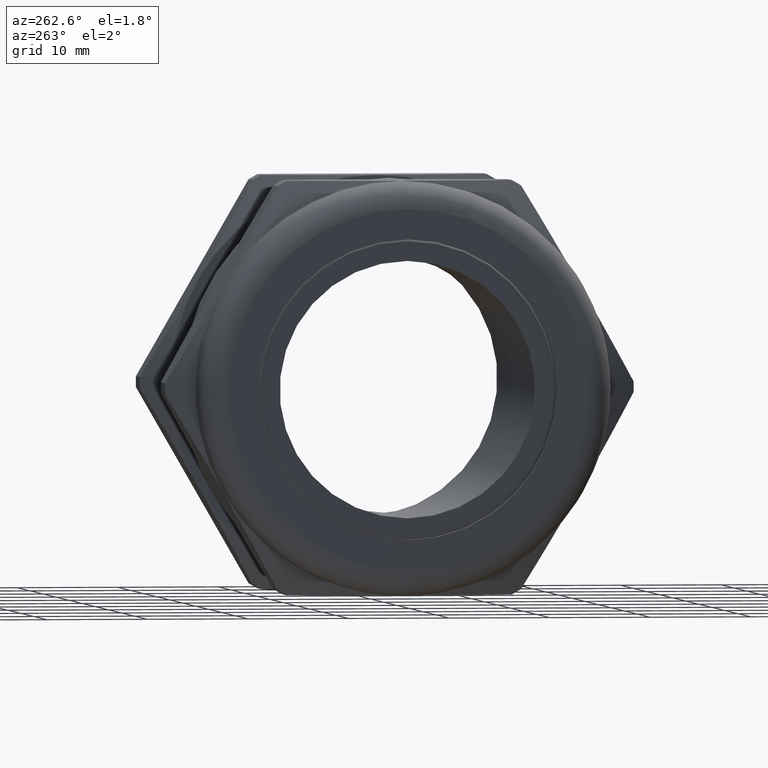
[diagram: clean part render]
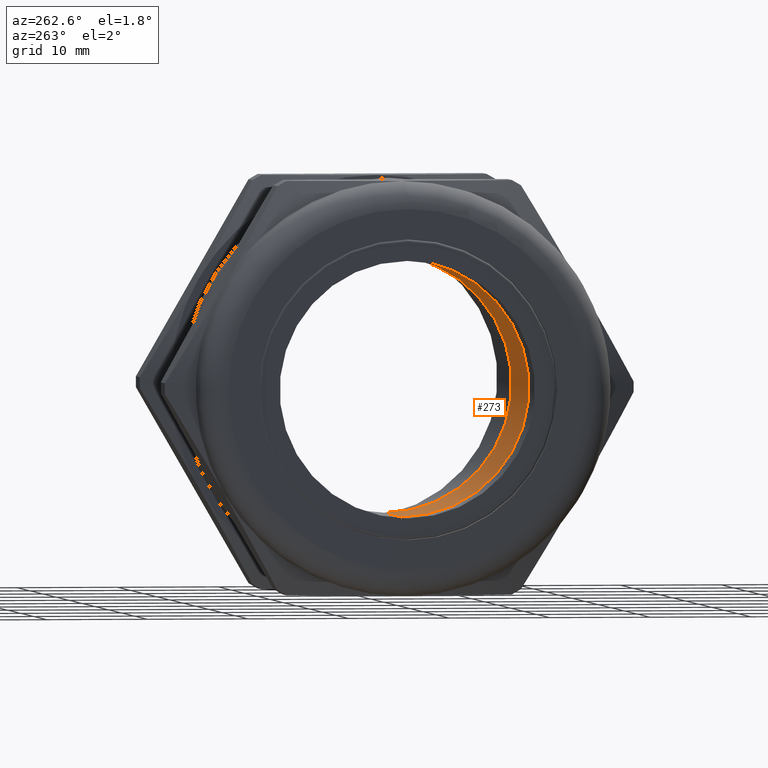
[diagram: same view with one face highlighted and labeled with its STEP entity id]
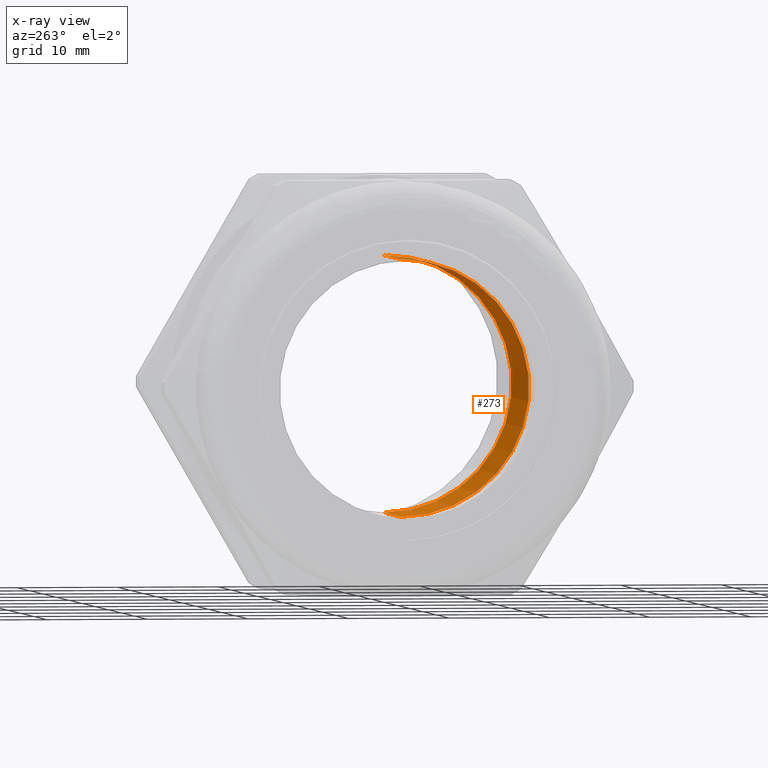
[diagram: x-ray of the same camera — body ghosted, the highlighted face saturated]
A machine part, auxiliary view. The second image highlights one B-rep face of the part: STEP entity #273.
The next image is the same camera in x-ray: the body ghosted, the highlighted face saturated — about 1% of this face is hidden behind the body in this view.
In plain terms, the highlighted cylindrical surface (partial cylindrical patch) has radius 12.7 mm, axis along (-1, 0, 0).
Its self-contained STEP definition (entity closure, byte-faithful):
#262 = ORIENTED_EDGE ( 'NONE', *, *, #318, .F. ) ;
#272 = EDGE_LOOP ( 'NONE', ( #262, #295, #314, #288 ) ) ;
#273 = ADVANCED_FACE ( 'NONE', ( #1937 ), #1936, .F. ) ;
#286 = VERTEX_POINT ( 'NONE', #1927 ) ;
#288 = ORIENTED_EDGE ( 'NONE', *, *, #311, .F. ) ;
#293 = VERTEX_POINT ( 'NONE', #1972 ) ;
#294 = VERTEX_POINT ( 'NONE', #1971 ) ;
#295 = ORIENTED_EDGE ( 'NONE', *, *, #315, .T. ) ;
#311 = EDGE_CURVE ( 'NONE', #286, #294, #1998, .T. ) ;
#312 = VERTEX_POINT ( 'NONE', #1991 ) ;
#313 = EDGE_CURVE ( 'NONE', #293, #294, #1990, .T. ) ;
#314 = ORIENTED_EDGE ( 'NONE', *, *, #313, .T. ) ;
#315 = EDGE_CURVE ( 'NONE', #312, #293, #1985, .T. ) ;
#318 = EDGE_CURVE ( 'NONE', #312, #286, #1981, .T. ) ;
#1927 = CARTESIAN_POINT ( 'NONE',  ( 0.0000000000000000000, 6.355890190153334100E-017, 0.5000000000000000000 ) ) ;
#1932 = DIRECTION ( 'NONE',  ( 0.0000000000000000000, 0.0000000000000000000, 1.000000000000000000 ) ) ;
#1933 = DIRECTION ( 'NONE',  ( -1.000000000000000000, 0.0000000000000000000, 0.0000000000000000000 ) ) ;
#1934 = CARTESIAN_POINT ( 'NONE',  ( -2.719493435091831800, 0.0000000000000000000, 0.0000000000000000000 ) ) ;
#1935 = AXIS2_PLACEMENT_3D ( 'NONE', #1934, #1933, #1932 ) ;
#1936 = CYLINDRICAL_SURFACE ( 'NONE', #1935, 0.5000000000000000000 ) ;
#1937 = FACE_OUTER_BOUND ( 'NONE', #272, .T. ) ;
#1971 = CARTESIAN_POINT ( 'NONE',  ( -0.5235000000000000800, 0.0000000000000000000, 0.4999999999999999400 ) ) ;
#1972 = CARTESIAN_POINT ( 'NONE',  ( -0.5235000000000000800, 6.123233995736764800E-017, -0.4999999999999999400 ) ) ;
#1977 = DIRECTION ( 'NONE',  ( 0.0000000000000000000, 0.0000000000000000000, 1.000000000000000000 ) ) ;
#1978 = DIRECTION ( 'NONE',  ( -1.000000000000000000, 0.0000000000000000000, 0.0000000000000000000 ) ) ;
#1979 = CARTESIAN_POINT ( 'NONE',  ( 0.0000000000000000000, 0.0000000000000000000, 0.0000000000000000000 ) ) ;
#1980 = AXIS2_PLACEMENT_3D ( 'NONE', #1979, #1978, #1977 ) ;
#1981 = CIRCLE ( 'NONE', #1980, 0.5000000000000000000 ) ;
#1982 = DIRECTION ( 'NONE',  ( -1.000000000000000000, 0.0000000000000000000, 0.0000000000000000000 ) ) ;
#1983 = VECTOR ( 'NONE', #1982, 39.37007874015748100 ) ;
#1984 = CARTESIAN_POINT ( 'NONE',  ( -2.719493435091831800, 6.123233995736766000E-017, -0.5000000000000000000 ) ) ;
#1985 = LINE ( 'NONE', #1984, #1983 ) ;
#1986 = DIRECTION ( 'NONE',  ( 0.0000000000000000000, 0.0000000000000000000, 1.000000000000000000 ) ) ;
#1987 = DIRECTION ( 'NONE',  ( -1.000000000000000000, 0.0000000000000000000, 0.0000000000000000000 ) ) ;
#1988 = CARTESIAN_POINT ( 'NONE',  ( -0.5235000000000000800, 0.0000000000000000000, 0.0000000000000000000 ) ) ;
#1989 = AXIS2_PLACEMENT_3D ( 'NONE', #1988, #1987, #1986 ) ;
#1990 = CIRCLE ( 'NONE', #1989, 0.4999999999999999400 ) ;
#1991 = CARTESIAN_POINT ( 'NONE',  ( 0.0000000000000000000, 0.0000000000000000000, -0.5000000000000000000 ) ) ;
#1992 = DIRECTION ( 'NONE',  ( -1.000000000000000000, 0.0000000000000000000, 0.0000000000000000000 ) ) ;
#1993 = VECTOR ( 'NONE', #1992, 39.37007874015748100 ) ;
#1994 = CARTESIAN_POINT ( 'NONE',  ( -2.719493435091831800, 0.0000000000000000000, 0.5000000000000000000 ) ) ;
#1998 = LINE ( 'NONE', #1994, #1993 ) ;